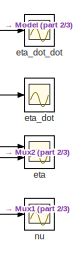
[diagram: root canvas - part 1/3, top right region]
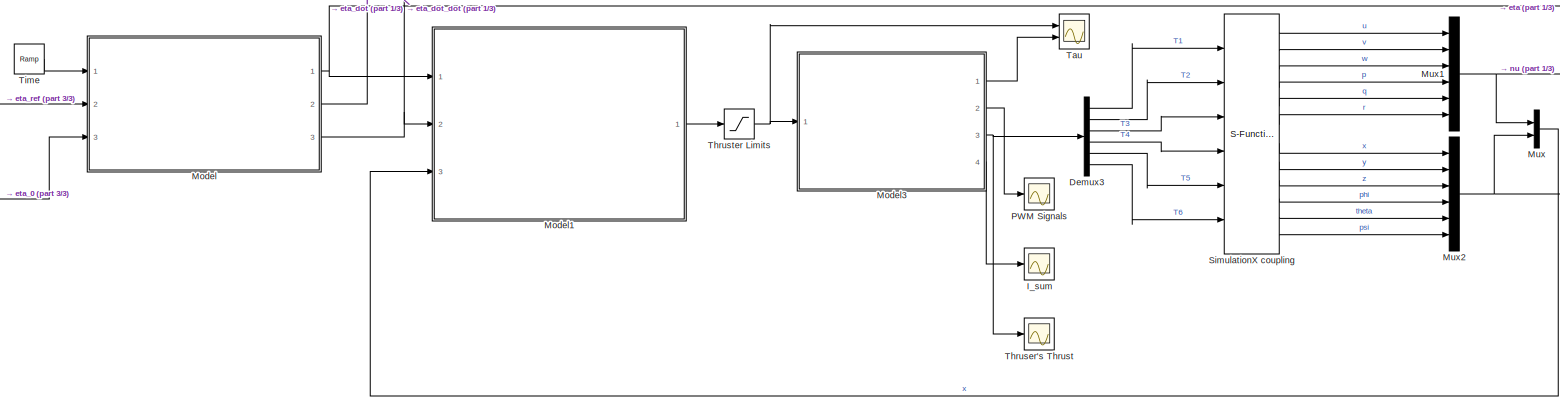
[diagram: root canvas - part 2/3, full width, middle band]
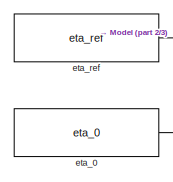
[diagram: root canvas - part 3/3, middle left region]
MODEL slx_8da834ab17fc
KIND model
CONFIG AbsTol = auto
CONFIG EnableMultiTasking = off
CONFIG FixedStep = auto
CONFIG MaxStep = auto
CONFIG MinStep = auto
CONFIG RelTol = 1e-3
CONFIG SampleTimeConstraint = Unconstrained
CONFIG Solver = VariableStepAuto
CONFIG SolverName = VariableStepAuto
CONFIG StartTime = 0.0
CONFIG StopTime = 10.0
BLOCK [Demux] Demux3
  DisplayOption = bar
  Outputs = 6
  Ports = [1, 6]
BLOCK [Scope] I_sum
  Floating = off
  NumInputPorts = 1
  Ports = [1]
  ScopeSpecificationString = Simulink.scopes.TimeScopeBlockCfg('CurrentConfiguration', extmgr.ConfigurationSet(extmgr.Configuration('Core','General UI',true),extmgr.Configuration('Core','Source UI',true),extmgr.Configuration('Sources','WiredSimulink',true,'DataLoggingVariableName','ScopeData1'),extmgr.Configuration('Visuals','Time Domain',true,'SerializedDisplays',{struct('MinYLimReal','-17.529','MaxYLimReal','22.16106','YLab...<+1443ch>
BLOCK [ModelReference] Model
  ModelNameDialog = trajectory_planner.slx
  ModelReferenceVersion = 1.26
  Ports = [3, 3]
BLOCK [ModelReference] Model1
  ModelNameDialog = controller.slx
  ModelReferenceVersion = 1.70
  Ports = [3, 1]
BLOCK [ModelReference] Model3
  ModelNameDialog = thrust_allocation.slx
  ModelReferenceVersion = 1.74
  Ports = [1, 4]
BLOCK [Mux] Mux
  DisplayOption = bar
  Inputs = 2
  Ports = [2, 1]
BLOCK [Mux] Mux1
  DisplayOption = bar
  Inputs = 6
  Ports = [6, 1]
BLOCK [Mux] Mux2
  DisplayOption = bar
  Inputs = 6
  Ports = [6, 1]
BLOCK [Scope] PWM Signals
  Floating = off
  NumInputPorts = 1
  Ports = [1]
  ScopeSpecificationString = Simulink.scopes.TimeScopeBlockCfg('CurrentConfiguration', extmgr.ConfigurationSet(extmgr.Configuration('Core','General UI',true),extmgr.Configuration('Core','Source UI',true),extmgr.Configuration('Sources','WiredSimulink',true,'DataLoggingVariableName','ScopeData2'),extmgr.Configuration('Visuals','Time Domain',true,'SerializedDisplays',{struct('MinYLimReal','1212.01711','MaxYLimReal','1716.52304',...<+1573ch>
BLOCK [S-Function] SimulationX coupling
  EnableBusSupport = off
  FunctionName = ITIFct2
  Parameters = ip, port, ts, nIn, nOut
  Ports = [6, 12]
  SFcnIsStateOwnerBlock = off
  SFunctionDeploymentMode = off
BLOCK [Scope] Tau
  Floating = off
  NumInputPorts = 2
  Ports = [2]
  ScopeSpecificationString = Simulink.scopes.TimeScopeBlockCfg('CurrentConfiguration', extmgr.ConfigurationSet(extmgr.Configuration('Core','General UI',true),extmgr.Configuration('Core','Source UI',true),extmgr.Configuration('Sources','WiredSimulink',true,'DataLoggingVariableName','ScopeData3'),extmgr.Configuration('Visuals','Time Domain',true,'SerializedDisplays',{struct('MinYLimReal','-10.44325','MaxYLimReal','83.07524','YL...<+1686ch>
BLOCK [Scope] Thruser's Thrust
  Floating = off
  NumInputPorts = 1
  Ports = [1]
  ScopeSpecificationString = Simulink.scopes.TimeScopeBlockCfg('CurrentConfiguration', extmgr.ConfigurationSet(extmgr.Configuration('Core','General UI',true),extmgr.Configuration('Core','Source UI',true),extmgr.Configuration('Sources','WiredSimulink',true,'DataLoggingVariableName','ScopeData4'),extmgr.Configuration('Visuals','Time Domain',true,'SerializedDisplays',{struct('MinYLimReal','-17.529','MaxYLimReal','17.297','YLabel...<+1532ch>
BLOCK [Saturate] Thruster Limits
  InputPortMap = u0
  LowerLimit = thrust_lower_limit
  Ports = [1, 1]
  UpperLimit = thrust_upper_limit
BLOCK [Reference] Time   REF=simulink/Sources/Ramp
  Ports = [0, 1]
  SourceBlock = simulink/Sources/Ramp
  SourceProductBaseCode = SL
  SourceProductName = Simulink
  SourceType = Ramp
BLOCK [Scope] eta
  Floating = off
  NumInputPorts = 2
  Ports = [2]
  ScopeSpecificationString = Simulink.scopes.TimeScopeBlockCfg('CurrentConfiguration', extmgr.ConfigurationSet(extmgr.Configuration('Core','General UI',true),extmgr.Configuration('Core','Source UI',true),extmgr.Configuration('Sources','WiredSimulink',true,'DataLoggingVariableName','ScopeData5'),extmgr.Configuration('Visuals','Time Domain',true,'SerializedDisplays',{struct('MinYLimReal','-0.87581','MaxYLimReal','7.88226','YLab...<+1576ch>
BLOCK [Constant] eta_0 
  Value = eta_0
BLOCK [Scope] eta_dot
  Floating = off
  NumInputPorts = 1
  Ports = [1]
  ScopeSpecificationString = Simulink.scopes.TimeScopeBlockCfg('CurrentConfiguration', extmgr.ConfigurationSet(extmgr.Configuration('Core','General UI',true),extmgr.Configuration('Core','Source UI',true),extmgr.Configuration('Sources','WiredSimulink',true,'DataLoggingVariableName','ScopeData6'),extmgr.Configuration('Visuals','Time Domain',true,'SerializedDisplays',{struct('MinYLimReal','-1.51609','MaxYLimReal','1.81488','YLab...<+1359ch>
BLOCK [Scope] eta_dot_dot
  Floating = off
  NumInputPorts = 1
  Ports = [1]
  ScopeSpecificationString = Simulink.scopes.TimeScopeBlockCfg('CurrentConfiguration', extmgr.ConfigurationSet(extmgr.Configuration('Core','General UI',true),extmgr.Configuration('Core','Source UI',true),extmgr.Configuration('Sources','WiredSimulink',true,'DataLoggingVariableName','ScopeData7'),extmgr.Configuration('Visuals','Time Domain',true,'SerializedDisplays',{struct('MinYLimReal','-0.00357','MaxYLimReal','0.03209','YLab...<+1428ch>
BLOCK [Constant] eta_ref
  Value = eta_ref
BLOCK [Scope] nu
  Floating = off
  NumInputPorts = 1
  Ports = [1]
  ScopeSpecificationString = Simulink.scopes.TimeScopeBlockCfg('CurrentConfiguration', extmgr.ConfigurationSet(extmgr.Configuration('Core','General UI',true),extmgr.Configuration('Core','Source UI',true),extmgr.Configuration('Sources','WiredSimulink',true,'DataLoggingVariableName','ScopeData8'),extmgr.Configuration('Visuals','Time Domain',true,'SerializedDisplays',{struct('MinYLimReal','-1.47689','MaxYLimReal','1.49279','YLab...<+1426ch>
LINE Demux3:1 -> SimulationX coupling:1
LINE Demux3:2 -> SimulationX coupling:2
LINE Demux3:3 -> SimulationX coupling:3
LINE Demux3:4 -> SimulationX coupling:4
LINE Demux3:5 -> SimulationX coupling:5
LINE Demux3:6 -> SimulationX coupling:6
LINE Model1:1 -> Thruster Limits:1
LINE Model3:1 -> Tau:2
LINE Model3:2 -> PWM Signals:1
NET Model3:3 -> Demux3:1, Thruser's Thrust:1
LINE Model3:4 -> I_sum:1
NET Model:1 -> Model1:1, eta:1
LINE Model:2 -> eta_dot:1
NET Model:3 -> Model1:2, eta_dot_dot:1
NET Mux1:1 -> Mux:1, nu:1
NET Mux2:1 -> Mux:2, eta:2
LINE Mux:1 -> Model1:3
LINE SimulationX coupling:1 -> Mux1:1
LINE SimulationX coupling:10 -> Mux2:4
LINE SimulationX coupling:11 -> Mux2:5
LINE SimulationX coupling:12 -> Mux2:6
LINE SimulationX coupling:2 -> Mux1:2
LINE SimulationX coupling:3 -> Mux1:3
LINE SimulationX coupling:4 -> Mux1:4
LINE SimulationX coupling:5 -> Mux1:5
LINE SimulationX coupling:6 -> Mux1:6
LINE SimulationX coupling:7 -> Mux2:1
LINE SimulationX coupling:8 -> Mux2:2
LINE SimulationX coupling:9 -> Mux2:3
NET Thruster Limits:1 -> Model3:1, Tau:1
LINE Time :1 -> Model:1
LINE eta_0 :1 -> Model:3
LINE eta_ref:1 -> Model:2
note: NET lines group one-source signal fan-out (src -> all destinations, sorted); 1:1 wires keep LINE
